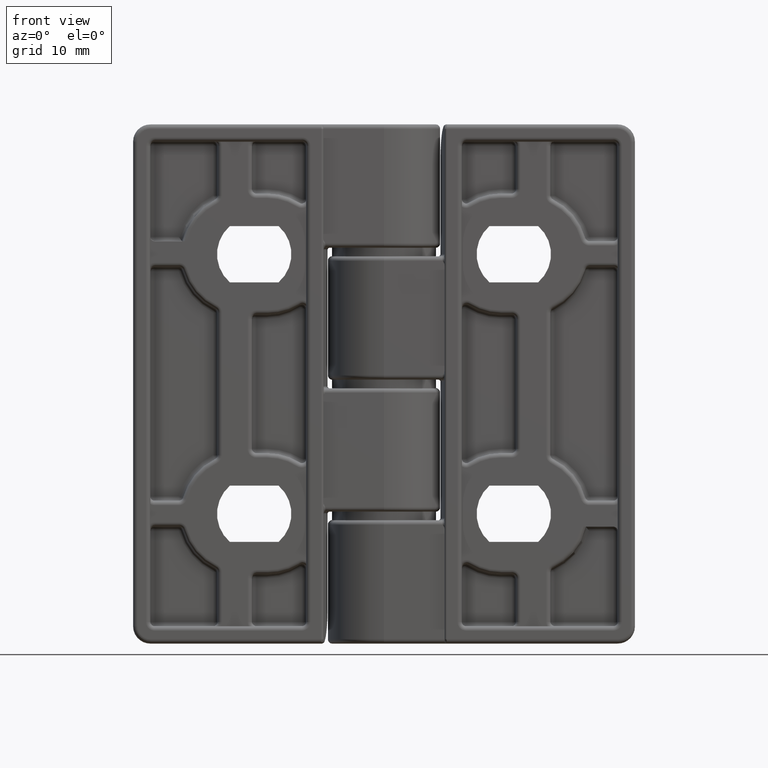
[diagram: clean part render]
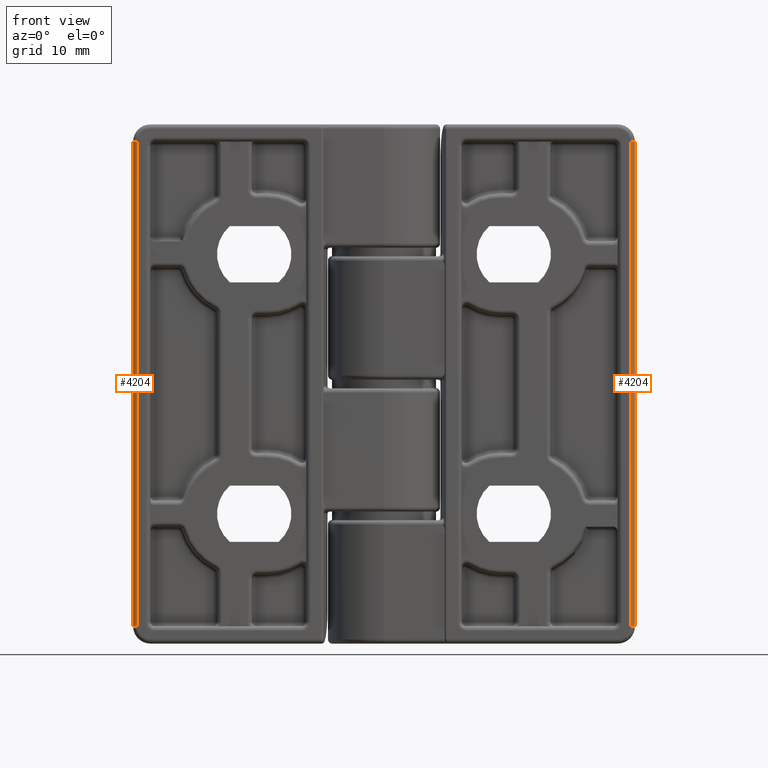
[diagram: same view with one multi-face feature highlighted, each face labeled with its STEP entity id]
A machine part, front view. The highlighted faces form ONE feature: a constant-radius fillet chain: 2 tangent blend faces with common blend radius 0.5 mm. The faces share edges in the B-rep.
Their STEP definitions:
[1] entity #4204 (Cylinder):
#179=CYLINDRICAL_SURFACE('',#4558,0.5);
#414=FACE_OUTER_BOUND('',#716,.T.);
#716=EDGE_LOOP('',(#3094,#3095,#3096,#3097));
#1022=CIRCLE('',#4557,0.5);
#1023=CIRCLE('',#4559,0.5);
#1340=LINE('',#7414,#1599);
#1353=LINE('',#7745,#1612);
#1599=VECTOR('',#5306,56.);
#1612=VECTOR('',#5363,55.9999999989608);
#1895=VERTEX_POINT('',#7411);
#1896=VERTEX_POINT('',#7413);
#1913=VERTEX_POINT('',#7738);
#1914=VERTEX_POINT('',#7744);
#2301=EDGE_CURVE('',#1896,#1895,#1340,.T.);
#2331=EDGE_CURVE('',#1913,#1896,#1022,.T.);
#2332=EDGE_CURVE('',#1913,#1914,#1353,.T.);
#2333=EDGE_CURVE('',#1914,#1895,#1023,.T.);
#3094=ORIENTED_EDGE('',*,*,#2332,.F.);
#3095=ORIENTED_EDGE('',*,*,#2331,.T.);
#3096=ORIENTED_EDGE('',*,*,#2301,.T.);
#3097=ORIENTED_EDGE('',*,*,#2333,.F.);
#4204=ADVANCED_FACE('',(#414),#179,.T.);
#4557=AXIS2_PLACEMENT_3D('',#7742,#5359,#5360);
#4558=AXIS2_PLACEMENT_3D('',#7743,#5361,#5362);
#4559=AXIS2_PLACEMENT_3D('',#7746,#5364,#5365);
#5306=DIRECTION('',(0.,-1.,0.));
#5359=DIRECTION('center_axis',(0.,-1.,0.));
#5360=DIRECTION('ref_axis',(1.,0.,0.));
#5361=DIRECTION('center_axis',(0.,-1.,0.));
#5362=DIRECTION('ref_axis',(1.,0.,0.));
#5363=DIRECTION('',(0.,-1.,0.));
#5364=DIRECTION('center_axis',(0.,-1.,0.));
#5365=DIRECTION('ref_axis',(1.,0.,0.));
#7411=CARTESIAN_POINT('',(28.5,-28.,7.));
#7413=CARTESIAN_POINT('',(28.5,28.,7.));
#7414=CARTESIAN_POINT('',(28.5,28.,7.));
#7738=CARTESIAN_POINT('',(29.,27.99999999922,6.5));
#7742=CARTESIAN_POINT('Origin',(28.5,28.,6.5));
#7743=CARTESIAN_POINT('Origin',(28.5,28.11111683567,6.5));
#7744=CARTESIAN_POINT('',(28.9999999999997,-27.9999999997408,6.5));
#7745=CARTESIAN_POINT('',(29.,27.99999999896,6.5));
#7746=CARTESIAN_POINT('Origin',(28.5,-28.,6.5));
[2] entity #4204 (Cylinder):
#179=CYLINDRICAL_SURFACE('',#4558,0.5);
#414=FACE_OUTER_BOUND('',#716,.T.);
#716=EDGE_LOOP('',(#3094,#3095,#3096,#3097));
#1022=CIRCLE('',#4557,0.5);
#1023=CIRCLE('',#4559,0.5);
#1340=LINE('',#7414,#1599);
#1353=LINE('',#7745,#1612);
#1599=VECTOR('',#5306,56.);
#1612=VECTOR('',#5363,55.9999999989608);
#1895=VERTEX_POINT('',#7411);
#1896=VERTEX_POINT('',#7413);
#1913=VERTEX_POINT('',#7738);
#1914=VERTEX_POINT('',#7744);
#2301=EDGE_CURVE('',#1896,#1895,#1340,.T.);
#2331=EDGE_CURVE('',#1913,#1896,#1022,.T.);
#2332=EDGE_CURVE('',#1913,#1914,#1353,.T.);
#2333=EDGE_CURVE('',#1914,#1895,#1023,.T.);
#3094=ORIENTED_EDGE('',*,*,#2332,.F.);
#3095=ORIENTED_EDGE('',*,*,#2331,.T.);
#3096=ORIENTED_EDGE('',*,*,#2301,.T.);
#3097=ORIENTED_EDGE('',*,*,#2333,.F.);
#4204=ADVANCED_FACE('',(#414),#179,.T.);
#4557=AXIS2_PLACEMENT_3D('',#7742,#5359,#5360);
#4558=AXIS2_PLACEMENT_3D('',#7743,#5361,#5362);
#4559=AXIS2_PLACEMENT_3D('',#7746,#5364,#5365);
#5306=DIRECTION('',(0.,-1.,0.));
#5359=DIRECTION('center_axis',(0.,-1.,0.));
#5360=DIRECTION('ref_axis',(1.,0.,0.));
#5361=DIRECTION('center_axis',(0.,-1.,0.));
#5362=DIRECTION('ref_axis',(1.,0.,0.));
#5363=DIRECTION('',(0.,-1.,0.));
#5364=DIRECTION('center_axis',(0.,-1.,0.));
#5365=DIRECTION('ref_axis',(1.,0.,0.));
#7411=CARTESIAN_POINT('',(28.5,-28.,7.));
#7413=CARTESIAN_POINT('',(28.5,28.,7.));
#7414=CARTESIAN_POINT('',(28.5,28.,7.));
#7738=CARTESIAN_POINT('',(29.,27.99999999922,6.5));
#7742=CARTESIAN_POINT('Origin',(28.5,28.,6.5));
#7743=CARTESIAN_POINT('Origin',(28.5,28.11111683567,6.5));
#7744=CARTESIAN_POINT('',(28.9999999999997,-27.9999999997408,6.5));
#7745=CARTESIAN_POINT('',(29.,27.99999999896,6.5));
#7746=CARTESIAN_POINT('Origin',(28.5,-28.,6.5));